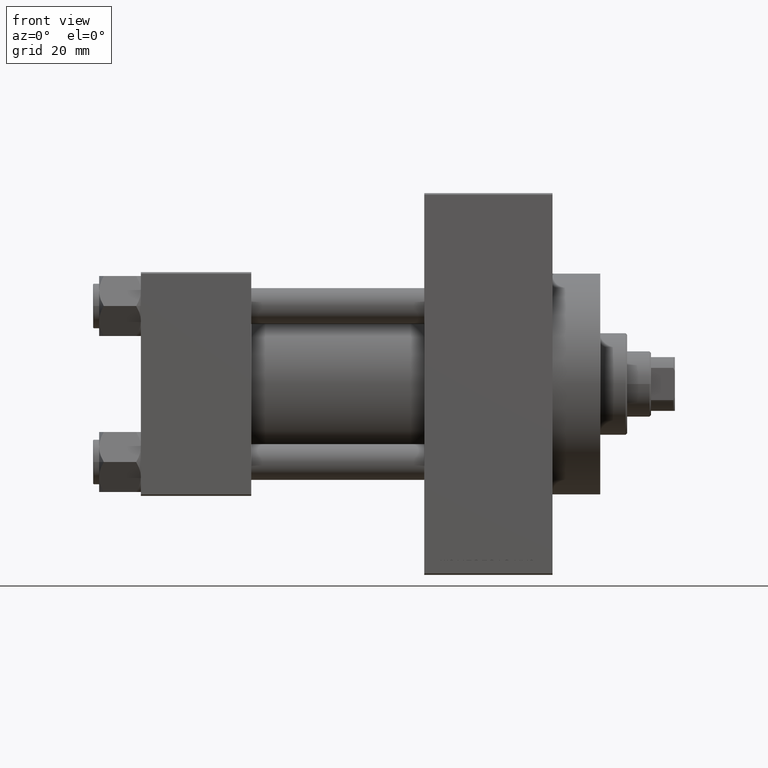
[diagram: clean part render]
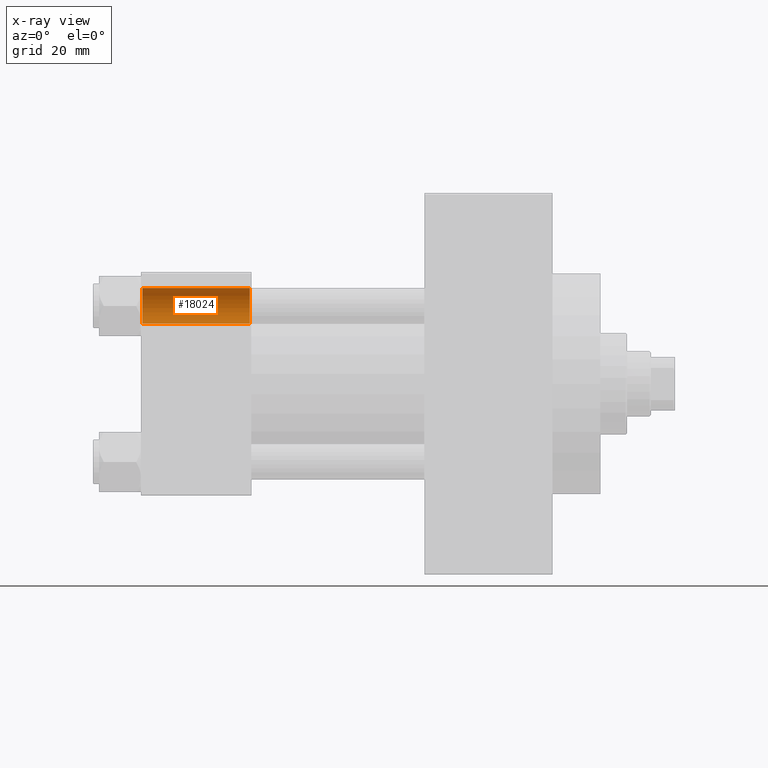
[diagram: x-ray — body ghosted, one internal face saturated and labeled with its STEP entity id]
A machine part, front view, then the same camera in x-ray: the body is ghosted and one INTERNAL B-rep face — a face not visible from any outside direction — is saturated and labeled: STEP entity #18024.
In plain terms, the highlighted cylindrical surface (edge-blend (fillet) strip) has radius 6 mm, axis along (-1, -0, -0).
Its self-contained STEP definition (entity closure, byte-faithful):
#3080 = AXIS2_PLACEMENT_3D ( 'NONE', #32623, #47235, #28536 ) ;
#3585 = DIRECTION ( 'NONE',  ( 0.000000000000000000, 0.000000000000000000, 1.000000000000000000 ) ) ;
#4187 = VERTEX_POINT ( 'NONE', #25743 ) ;
#4884 = EDGE_CURVE ( 'NONE', #36911, #4187, #35444, .T. ) ;
#6342 = VECTOR ( 'NONE', #39866, 1000.000000000000000 ) ;
#6374 = CIRCLE ( 'NONE', #11725, 6.000000000000008882 ) ;
#6928 = FACE_OUTER_BOUND ( 'NONE', #8955, .T. ) ;
#8955 = EDGE_LOOP ( 'NONE', ( #21430, #42543, #41214, #36278 ) ) ;
#10298 = DIRECTION ( 'NONE',  ( 1.000000000000000000, -0.000000000000000000, -0.000000000000000000 ) ) ;
#11178 = DIRECTION ( 'NONE',  ( 0.000000000000000000, 0.000000000000000000, 1.000000000000000000 ) ) ;
#11725 = AXIS2_PLACEMENT_3D ( 'NONE', #14783, #29429, #11178 ) ;
#13708 = CARTESIAN_POINT ( 'NONE',  ( 37.00000000000000711, 26.14999999999999858, 32.15000000000001279 ) ) ;
#13980 = EDGE_CURVE ( 'NONE', #36911, #37616, #21385, .T. ) ;
#14783 = CARTESIAN_POINT ( 'NONE',  ( 0.5000000000000213163, 26.14999999999999858, 26.15000000000000213 ) ) ;
#17509 = CYLINDRICAL_SURFACE ( 'NONE', #3080, 6.000000000000008882 ) ;
#18024 = ADVANCED_FACE ( 'NONE', ( #6928 ), #17509, .F. ) ;
#18495 = DIRECTION ( 'NONE',  ( -1.000000000000000000, -0.000000000000000000, -0.000000000000000000 ) ) ;
#19367 = CARTESIAN_POINT ( 'NONE',  ( 0.5000000000000213163, 26.14999999999999858, 32.15000000000001279 ) ) ;
#21385 = LINE ( 'NONE', #32653, #41357 ) ;
#21430 = ORIENTED_EDGE ( 'NONE', *, *, #13980, .F. ) ;
#22043 = CARTESIAN_POINT ( 'NONE',  ( 36.50000000000003553, 26.14999999999999858, 26.15000000000000213 ) ) ;
#23838 = CARTESIAN_POINT ( 'NONE',  ( 0.5000000000000213163, 26.14999999999999858, 20.14999999999999858 ) ) ;
#25225 = LINE ( 'NONE', #13708, #6342 ) ;
#25743 = CARTESIAN_POINT ( 'NONE',  ( 36.50000000000003553, 26.14999999999999858, 32.15000000000001279 ) ) ;
#25943 = VERTEX_POINT ( 'NONE', #19367 ) ;
#27447 = EDGE_CURVE ( 'NONE', #4187, #25943, #25225, .T. ) ;
#28289 = EDGE_CURVE ( 'NONE', #25943, #37616, #6374, .T. ) ;
#28536 = DIRECTION ( 'NONE',  ( 0.000000000000000000, 0.000000000000000000, 1.000000000000000000 ) ) ;
#29429 = DIRECTION ( 'NONE',  ( -1.000000000000000000, 0.000000000000000000, 0.000000000000000000 ) ) ;
#32623 = CARTESIAN_POINT ( 'NONE',  ( 37.00000000000000711, 26.14999999999999858, 26.15000000000000213 ) ) ;
#32653 = CARTESIAN_POINT ( 'NONE',  ( 37.00000000000000711, 26.14999999999999858, 20.14999999999999858 ) ) ;
#35444 = CIRCLE ( 'NONE', #44619, 6.000000000000008882 ) ;
#36278 = ORIENTED_EDGE ( 'NONE', *, *, #28289, .T. ) ;
#36911 = VERTEX_POINT ( 'NONE', #44609 ) ;
#37616 = VERTEX_POINT ( 'NONE', #23838 ) ;
#39866 = DIRECTION ( 'NONE',  ( -1.000000000000000000, -0.000000000000000000, -0.000000000000000000 ) ) ;
#41214 = ORIENTED_EDGE ( 'NONE', *, *, #27447, .T. ) ;
#41357 = VECTOR ( 'NONE', #18495, 1000.000000000000000 ) ;
#42543 = ORIENTED_EDGE ( 'NONE', *, *, #4884, .T. ) ;
#44609 = CARTESIAN_POINT ( 'NONE',  ( 36.50000000000003553, 26.14999999999999858, 20.14999999999999858 ) ) ;
#44619 = AXIS2_PLACEMENT_3D ( 'NONE', #22043, #10298, #3585 ) ;
#47235 = DIRECTION ( 'NONE',  ( -1.000000000000000000, -0.000000000000000000, -0.000000000000000000 ) ) ;